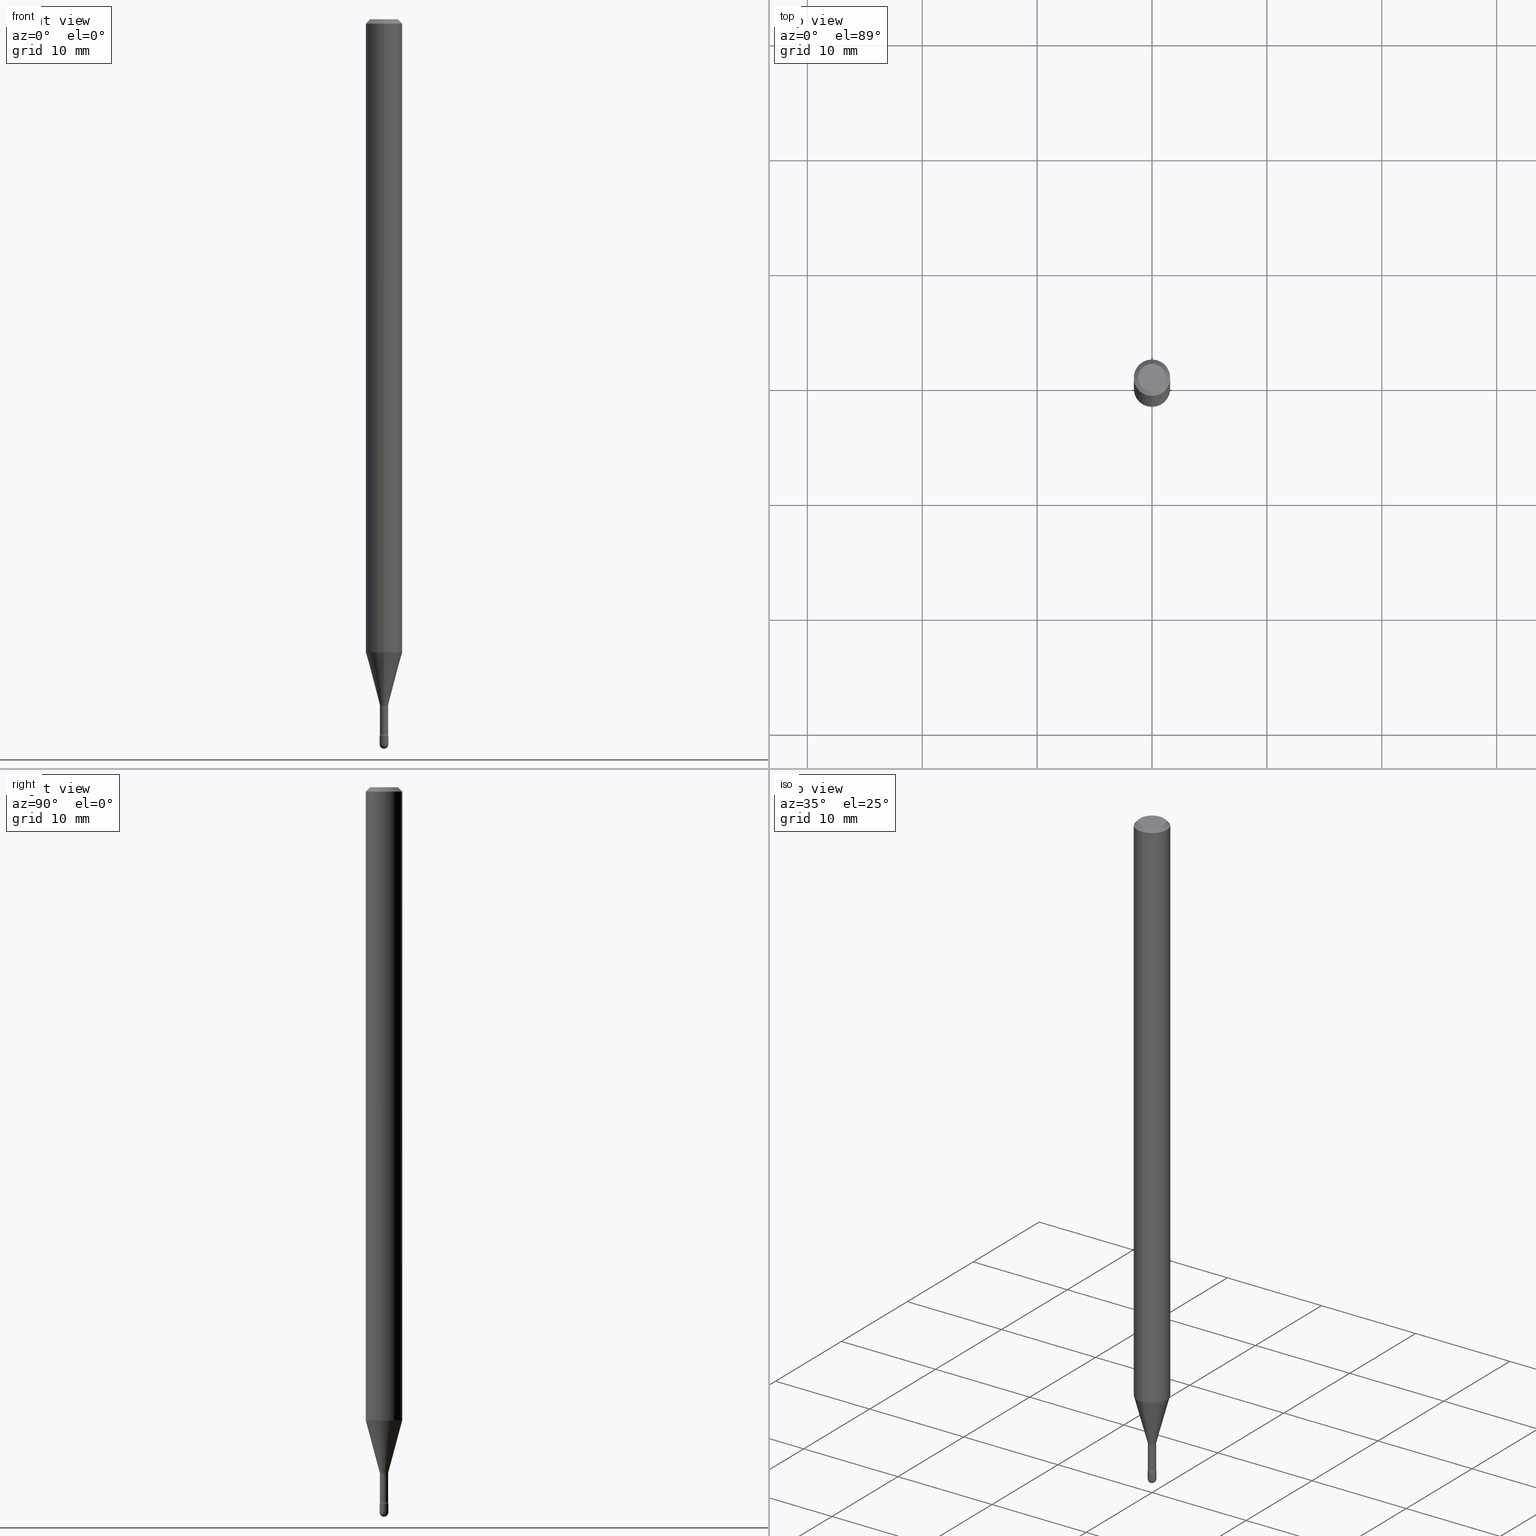
[diagram: canonical four-view strip — front | top / right | iso, engineering-drawing reading convention]
A machine part, canonical four-view strip (front | top / right | iso — engineering-drawing reading convention). The complete STEP part file that produces these views, byte-faithful:
ISO-10303-21;
HEADER;
FILE_DESCRIPTION (( 'STEP AP203' ),
    '1' );
FILE_NAME ('09439.STEP',
    '2024-04-09T23:10:27',
    ( '' ),
    ( '' ),
    'SwSTEP 2.0',
    'SolidWorks 2023',
    '' );
FILE_SCHEMA (( 'CONFIG_CONTROL_DESIGN' ));
ENDSEC;

DATA;
#1 = CARTESIAN_POINT ( 'NONE',  ( -1.047444401652339092E-16, -0.01500000000000856551, -2.455000000000000071 ) ) ;
#2 = DIRECTION ( 'NONE',  ( 1.000000000000000000, -6.982962677686204391E-15, 0.000000000000000000 ) ) ;
#3 = DIRECTION ( 'NONE',  ( -2.445515325509068465E-29, 3.491414720523559495E-15, 1.000000000000000000 ) ) ;
#4 = PLANE ( 'NONE',  #136 ) ;
#5 = APPROVAL_DATE_TIME ( #406, #88 ) ;
#6 = CARTESIAN_POINT ( 'NONE',  ( 6.076989983370064174E-29, -8.676331127025216680E-15, -2.484999999999999876 ) ) ;
#7 = CIRCLE ( 'NONE', #155, 0.01499999999999999424 ) ;
#8 = CC_DESIGN_APPROVAL ( #357, ( #46 ) ) ;
#9 = CARTESIAN_POINT ( 'NONE',  ( -0.01499999999999999771, 1.065814103640150116E-16, -7.378402635382356781E-31 ) ) ;
#10 = PERSON_AND_ORGANIZATION_ROLE ( 'classification_officer' ) ;
#11 = ORIENTED_EDGE ( 'NONE', *, *, #379, .F. ) ;
#12 = ADVANCED_FACE ( 'NONE', ( #365 ), #148, .T. ) ;
#13 = CARTESIAN_POINT ( 'NONE',  ( 2.739537045417235021E-16, 0.01461111260565578496, -2.348092501787273356 ) ) ;
#14 = DIRECTION ( 'NONE',  ( -6.982962677686265922E-15, -1.000000000000000000, 3.491414720523559101E-15 ) ) ;
#15 = PERSON ( 'UNSPECIFIED', 'UNSPECIFIED', 'UNSPECIFIED', ('UNSPECIFIED'), ('UNSPECIFIED'), ('UNSPECIFIED') ) ;
#16 = ORIENTED_EDGE ( 'NONE', *, *, #338, .T. ) ;
#17 = AXIS2_PLACEMENT_3D ( 'NONE', #20, #463, #497 ) ;
#18 = AXIS2_PLACEMENT_3D ( 'NONE', #86, #124, #80 ) ;
#19 = PERSON_AND_ORGANIZATION ( #15, #445 ) ;
#20 = CARTESIAN_POINT ( 'NONE',  ( 2.023891132384325688E-45, -2.888834055363846179E-31, -8.275019644172574323E-17 ) ) ;
#21 = ADVANCED_FACE ( 'NONE', ( #534 ), #561, .F. ) ;
#22 = DIRECTION ( 'NONE',  ( 6.982962677686265922E-15, 1.000000000000000000, -3.491414720523559101E-15 ) ) ;
#23 = DIRECTION ( 'NONE',  ( 1.000000000000000000, -6.982962677686204391E-15, 0.000000000000000000 ) ) ;
#24 = DIRECTION ( 'NONE',  ( -2.445515325509068465E-29, 3.491414720523559495E-15, 1.000000000000000000 ) ) ;
#25 = ORIENTED_EDGE ( 'NONE', *, *, #565, .F. ) ;
#26 = TOROIDAL_SURFACE ( 'NONE', #212, 0.02910000000000000087, 0.01500000000000002373 ) ;
#27 = FACE_OUTER_BOUND ( 'NONE', #264, .T. ) ;
#28 = LOCAL_TIME ( 19, 10, 27.00000000000000000, #139 ) ;
#29 = EDGE_CURVE ( 'NONE', #200, #226, #44, .T. ) ;
#30 = DIRECTION ( 'NONE',  ( -2.445515325509068465E-29, 3.491414720523559495E-15, 1.000000000000000000 ) ) ;
#31 = DIRECTION ( 'NONE',  ( -6.982962677686266711E-15, -1.000000000000000000, 3.491414720523561862E-15 ) ) ;
#32 = DIRECTION ( 'NONE',  ( 1.000000000000000000, -6.982962677686204391E-15, 0.000000000000000000 ) ) ;
#33 = VERTEX_POINT ( 'NONE', #382 ) ;
#34 = AXIS2_PLACEMENT_3D ( 'NONE', #412, #541, #160 ) ;
#35 = CC_DESIGN_PERSON_AND_ORGANIZATION_ASSIGNMENT ( #19, #10, ( #427 ) ) ;
#36 = VECTOR ( 'NONE', #184, 39.37007874015748143 ) ;
#37 = CARTESIAN_POINT ( 'NONE',  ( 1.047444401653551842E-16, 0.01499999999999138481, -2.484999999999999432 ) ) ;
#38 = ORIENTED_EDGE ( 'NONE', *, *, #517, .F. ) ;
#39 = EDGE_CURVE ( 'NONE', #242, #502, #249, .T. ) ;
#40 = CARTESIAN_POINT ( 'NONE',  ( 4.440892098501154699E-16, 0.06249999999999240885, -2.169368740913667271 ) ) ;
#41 = ORIENTED_EDGE ( 'NONE', *, *, #53, .T. ) ;
#42 = DIRECTION ( 'NONE',  ( -2.445468806185136597E-29, 3.491481338843145583E-15, 1.000000000000000000 ) ) ;
#43 = ORIENTED_EDGE ( 'NONE', *, *, #510, .T. ) ;
#44 = CIRCLE ( 'NONE', #17, 0.04749999999999999362 ) ;
#45 = VECTOR ( 'NONE', #85, 39.37007874015749564 ) ;
#46 = PRODUCT_DEFINITION_FORMATION_WITH_SPECIFIED_SOURCE ( 'ANY', '', #460, .NOT_KNOWN. ) ;
#47 = APPLICATION_CONTEXT ( 'configuration controlled 3d designs of mechanical parts and assemblies' ) ;
#48 = CARTESIAN_POINT ( 'NONE',  ( 2.067679361062493109E-16, 0.02909999999999148684, -2.449882383367230965 ) ) ;
#49 = CARTESIAN_POINT ( 'NONE',  ( 0.01499999999999999771, -1.047444401652939859E-16, 7.314265163693902638E-31 ) ) ;
#50 = ORIENTED_EDGE ( 'NONE', *, *, #565, .T. ) ;
#51 = PLANE ( 'NONE',  #279 ) ;
#52 =( NAMED_UNIT ( * ) SI_UNIT ( $, .STERADIAN. ) SOLID_ANGLE_UNIT ( ) );
#53 = EDGE_CURVE ( 'NONE', #502, #398, #386, .T. ) ;
#54 = ADVANCED_FACE ( 'NONE', ( #199 ), #26, .F. ) ;
#55 = AXIS2_PLACEMENT_3D ( 'NONE', #76, #240, #327 ) ;
#56 = APPROVAL_PERSON_ORGANIZATION ( #141, #499, #272 ) ;
#57 = DIRECTION ( 'NONE',  ( -6.982962677686265922E-15, -1.000000000000000000, 0.000000000000000000 ) ) ;
#58 = CARTESIAN_POINT ( 'NONE',  ( 6.003740124124763858E-29, -8.571423138885338931E-15, -2.455000000000000071 ) ) ;
#59 = LINE ( 'NONE', #400, #164 ) ;
#60 = ORIENTED_EDGE ( 'NONE', *, *, #439, .T. ) ;
#61 = DIRECTION ( 'NONE',  ( 1.000000000000000000, -6.982962677686266711E-15, 4.876176775795935793E-29 ) ) ;
#62 = PRODUCT_RELATED_PRODUCT_CATEGORY ( 'detail', '', ( #460 ) ) ;
#63 = PERSON_AND_ORGANIZATION ( #15, #445 ) ;
#64 = DIRECTION ( 'NONE',  ( 1.000000000000000000, -6.982962677686204391E-15, 0.000000000000000000 ) ) ;
#65 = CIRCLE ( 'NONE', #456, 0.01500000000000012434 ) ;
#66 = CC_DESIGN_APPROVAL ( #88, ( #192 ) ) ;
#67 = FACE_OUTER_BOUND ( 'NONE', #255, .T. ) ;
#68 = DIRECTION ( 'NONE',  ( -2.445468806185136597E-29, 3.491481338843145583E-15, 1.000000000000000000 ) ) ;
#69 = DIRECTION ( 'NONE',  ( -6.982962677686265922E-15, -1.000000000000000000, 3.483106191921935554E-15 ) ) ;
#70 = EDGE_LOOP ( 'NONE', ( #161, #176 ) ) ;
#71 = ADVANCED_BREP_SHAPE_REPRESENTATION ( '09439', ( #301, #105, #543 ), #183 ) ;
#72 = CARTESIAN_POINT ( 'NONE',  ( 5.751680975676666487E-29, -8.211876079859469508E-15, -2.351974787463811278 ) ) ;
#73 = ORIENTED_EDGE ( 'NONE', *, *, #397, .F. ) ;
#74 = ADVANCED_FACE ( 'NONE', ( #285 ), #426, .F. ) ;
#75 = AXIS2_PLACEMENT_3D ( 'NONE', #549, #213, #122 ) ;
#76 = CARTESIAN_POINT ( 'NONE',  ( 5.742296198833706335E-29, -8.198164725891078954E-15, -2.348092501787273356 ) ) ;
#77 = AXIS2_PLACEMENT_3D ( 'NONE', #271, #224, #227 ) ;
#78 = DIRECTION ( 'NONE',  ( 1.000000000000000000, -6.982962677686268288E-15, 0.000000000000000000 ) ) ;
#79 = ORIENTED_EDGE ( 'NONE', *, *, #222, .F. ) ;
#80 = DIRECTION ( 'NONE',  ( -6.982962677686265922E-15, -1.000000000000000000, 4.370956789862821150E-15 ) ) ;
#81 = VERTEX_POINT ( 'NONE', #196 ) ;
#82 = CARTESIAN_POINT ( 'NONE',  ( -1.169113584055446105E-44, 1.669184350826100908E-30, 4.780733988912460139E-16 ) ) ;
#83 = ORIENTED_EDGE ( 'NONE', *, *, #254, .T. ) ;
#84 = AXIS2_PLACEMENT_3D ( 'NONE', #250, #30, #69 ) ;
#85 = DIRECTION ( 'NONE',  ( -1.807323732225328562E-15, -0.2588190451025179639, 0.9659258262890689783 ) ) ;
#86 = CARTESIAN_POINT ( 'NONE',  ( 5.305224502584683767E-29, -7.574165956269636631E-15, -2.169368740913666826 ) ) ;
#87 = EDGE_LOOP ( 'NONE', ( #296, #38, #350, #511 ) ) ;
#88 = APPROVAL ( #402, 'UNSPECIFIED' ) ;
#89 = DIRECTION ( 'NONE',  ( -1.000000000000000000, 6.982962677686265922E-15, -4.883557194083112340E-29 ) ) ;
#90 = EDGE_LOOP ( 'NONE', ( #205, #43, #79, #244, #266 ) ) ;
#91 = APPROVAL_PERSON_ORGANIZATION ( #147, #88, #326 ) ;
#92 = CARTESIAN_POINT ( 'NONE',  ( 0.01499999999999999944, -8.676331127025216680E-15, -2.455000000000000071 ) ) ;
#93 = DATE_AND_TIME ( #409, #28 ) ;
#94 = ORIENTED_EDGE ( 'NONE', *, *, #180, .T. ) ;
#95 = DIRECTION ( 'NONE',  ( -6.982962677686265133E-15, -1.000000000000000000, 0.000000000000000000 ) ) ;
#96 = CALENDAR_DATE ( 2024, 9, 4 ) ;
#97 = CC_DESIGN_PERSON_AND_ORGANIZATION_ASSIGNMENT ( #524, #492, ( #192 ) ) ;
#98 = DIRECTION ( 'NONE',  ( -2.445515325509068745E-29, 3.491414720523559101E-15, 1.000000000000000000 ) ) ;
#99 = PERSON_AND_ORGANIZATION ( #15, #445 ) ;
#100 = AXIS2_PLACEMENT_3D ( 'NONE', #444, #268, #231 ) ;
#101 = CARTESIAN_POINT ( 'NONE',  ( 0.000000000000000000, 0.000000000000000000, 0.000000000000000000 ) ) ;
#102 = DIRECTION ( 'NONE',  ( 7.105427357600997914E-15, 1.000000000000000000, 0.000000000000000000 ) ) ;
#103 = COORDINATED_UNIVERSAL_TIME_OFFSET ( 5, 0, .BEHIND. ) ;
#104 = ORIENTED_EDGE ( 'NONE', *, *, #470, .F. ) ;
#105 = MANIFOLD_SOLID_BREP ( 'Body-Move/Copy2[2]', #292 ) ;
#106 = PERSON_AND_ORGANIZATION_ROLE ( 'creator' ) ;
#107 = ORIENTED_EDGE ( 'NONE', *, *, #483, .F. ) ;
#108 = DIRECTION ( 'NONE',  ( -6.982962677686265922E-15, -1.000000000000000000, 0.000000000000000000 ) ) ;
#109 = ORIENTED_EDGE ( 'NONE', *, *, #234, .F. ) ;
#110 = VECTOR ( 'NONE', #169, 39.37007874015748143 ) ;
#111 = DIRECTION ( 'NONE',  ( -2.445515325509068465E-29, 3.491414720523559495E-15, 1.000000000000000000 ) ) ;
#112 = ORIENTED_EDGE ( 'NONE', *, *, #207, .F. ) ;
#113 = DIRECTION ( 'NONE',  ( 6.982962677686265922E-15, 1.000000000000000000, -3.483106191921935554E-15 ) ) ;
#114 = ADVANCED_FACE ( 'NONE', ( #67 ), #378, .T. ) ;
#115 = ORIENTED_EDGE ( 'NONE', *, *, #300, .T. ) ;
#116 = APPLICATION_CONTEXT ( 'configuration controlled 3d designs of mechanical parts and assemblies' ) ;
#117 = VERTEX_POINT ( 'NONE', #246 ) ;
#118 = CIRCLE ( 'NONE', #500, 0.01410000000000000316 ) ;
#119 = CARTESIAN_POINT ( 'NONE',  ( -0.01500000000000000291, -8.517377496578554084E-15, -2.455000000000000071 ) ) ;
#120 = ORIENTED_EDGE ( 'NONE', *, *, #158, .T. ) ;
#121 = ADVANCED_FACE ( 'NONE', ( #27 ), #229, .T. ) ;
#122 = DIRECTION ( 'NONE',  ( 6.982962677686265922E-15, 1.000000000000000000, 0.000000000000000000 ) ) ;
#123 =( LENGTH_UNIT ( ) NAMED_UNIT ( * ) SI_UNIT ( $, .METRE. ) );
#124 = DIRECTION ( 'NONE',  ( -2.445515325509068465E-29, 3.491414720523559495E-15, 1.000000000000000000 ) ) ;
#125 = ORIENTED_EDGE ( 'NONE', *, *, #320, .F. ) ;
#126 = CARTESIAN_POINT ( 'NONE',  ( -1.020288540047655014E-16, -0.01461111260567218156, -2.348092501787273356 ) ) ;
#127 = CIRCLE ( 'NONE', #405, 0.01499999999999999771 ) ;
#128 = AXIS2_PLACEMENT_3D ( 'NONE', #503, #539, #113 ) ;
#129 = DIRECTION ( 'NONE',  ( -2.445515325509068465E-29, 3.491414720523559495E-15, 1.000000000000000000 ) ) ;
#130 = ADVANCED_FACE ( 'NONE', ( #536 ), #530, .T. ) ;
#131 = CARTESIAN_POINT ( 'NONE',  ( 1.001865257421742965E-16, 0.01410000000000002571, 4.288444513318637644E-16 ) ) ;
#132 = ORIENTED_EDGE ( 'NONE', *, *, #172, .F. ) ;
#133 = DIRECTION ( 'NONE',  ( -6.982962677686266711E-15, -1.000000000000000000, 3.491414720523561862E-15 ) ) ;
#134 = DATE_TIME_ROLE ( 'classification_date' ) ;
#135 = AXIS2_PLACEMENT_3D ( 'NONE', #391, #557, #349 ) ;
#136 = AXIS2_PLACEMENT_3D ( 'NONE', #138, #321, #491 ) ;
#137 = CC_DESIGN_DATE_AND_TIME_ASSIGNMENT ( #282, #448, ( #192 ) ) ;
#138 = CARTESIAN_POINT ( 'NONE',  ( 6.003625919184510659E-29, -8.571586686859923311E-15, -2.455000000000000071 ) ) ;
#139 = COORDINATED_UNIVERSAL_TIME_OFFSET ( 5, 0, .BEHIND. ) ;
#140 = CYLINDRICAL_SURFACE ( 'NONE', #552, 0.06250000000000000000 ) ;
#141 = PERSON_AND_ORGANIZATION ( #15, #445 ) ;
#142 = DIRECTION ( 'NONE',  ( -6.982962677686265922E-15, -1.000000000000000000, 0.000000000000000000 ) ) ;
#143 = DIRECTION ( 'NONE',  ( 1.000000000000000000, 0.000000000000000000, 0.000000000000000000 ) ) ;
#144 = EDGE_LOOP ( 'NONE', ( #210, #418 ) ) ;
#145 = AXIS2_PLACEMENT_3D ( 'NONE', #504, #454, #64 ) ;
#146 = AXIS2_PLACEMENT_3D ( 'NONE', #334, #245, #61 ) ;
#147 = PERSON_AND_ORGANIZATION ( #15, #445 ) ;
#148 = SPHERICAL_SURFACE ( 'NONE', #248, 0.01500000000000012434 ) ;
#149 = ADVANCED_FACE ( 'NONE', ( #337 ), #415, .F. ) ;
#150 = ADVANCED_FACE ( 'NONE', ( #330 ), #368, .F. ) ;
#151 = CARTESIAN_POINT ( 'NONE',  ( 6.076989983370063053E-29, -8.676331127025215102E-15, -2.484999999999999432 ) ) ;
#152 = DIRECTION ( 'NONE',  ( -2.445515325509068465E-29, 3.491414720523559495E-15, 1.000000000000000000 ) ) ;
#153 = CARTESIAN_POINT ( 'NONE',  ( 3.316907271900976096E-16, 0.04749999999999999362, 3.181940199989112269E-17 ) ) ;
#154 = ORIENTED_EDGE ( 'NONE', *, *, #450, .F. ) ;
#155 = AXIS2_PLACEMENT_3D ( 'NONE', #518, #89, #480 ) ;
#156 = DIRECTION ( 'NONE',  ( -2.445468806185136597E-29, 3.491481338843145583E-15, 1.000000000000000000 ) ) ;
#157 = DIRECTION ( 'NONE',  ( -6.982962677686265922E-15, -1.000000000000000000, 0.000000000000000000 ) ) ;
#158 = EDGE_CURVE ( 'NONE', #360, #33, #332, .T. ) ;
#159 = LOCAL_TIME ( 19, 10, 27.00000000000000000, #487 ) ;
#160 = DIRECTION ( 'NONE',  ( 7.105427357600999492E-15, 1.000000000000000000, 0.000000000000000000 ) ) ;
#161 = ORIENTED_EDGE ( 'NONE', *, *, #358, .F. ) ;
#162 = DIRECTION ( 'NONE',  ( -6.982962677686265922E-15, -1.000000000000000000, 3.491414720523559495E-15 ) ) ;
#163 = VERTEX_POINT ( 'NONE', #340 ) ;
#164 = VECTOR ( 'NONE', #98, 39.37007874015748143 ) ;
#165 = DIRECTION ( 'NONE',  ( -2.445515325509068465E-29, 3.491414720523559495E-15, 1.000000000000000000 ) ) ;
#166 = ORIENTED_EDGE ( 'NONE', *, *, #399, .T. ) ;
#167 = CARTESIAN_POINT ( 'NONE',  ( 5.751790387953684736E-29, -8.211719395251420381E-15, -2.351974787463811278 ) ) ;
#168 = ORIENTED_EDGE ( 'NONE', *, *, #300, .F. ) ;
#169 = DIRECTION ( 'NONE',  ( -4.851104656540964275E-15, -0.7071067811865500152, -0.7071067811865450192 ) ) ;
#170 = EDGE_LOOP ( 'NONE', ( #260, #560, #381, #323 ) ) ;
#171 = DIRECTION ( 'NONE',  ( -1.000000000000000000, 7.105427357601001070E-15, -4.926315508542082329E-29 ) ) ;
#172 = EDGE_CURVE ( 'NONE', #298, #371, #269, .T. ) ;
#173 = AXIS2_PLACEMENT_3D ( 'NONE', #48, #235, #102 ) ;
#174 = EDGE_LOOP ( 'NONE', ( #537, #383, #354, #429 ) ) ;
#175 = LINE ( 'NONE', #215, #45 ) ;
#176 = ORIENTED_EDGE ( 'NONE', *, *, #439, .F. ) ;
#177 = DIRECTION ( 'NONE',  ( -2.445515325509068465E-29, 3.491414720523559495E-15, 1.000000000000000000 ) ) ;
#178 = CARTESIAN_POINT ( 'NONE',  ( 6.114313390179726173E-29, -8.727784862008503672E-15, -2.500000000000000000 ) ) ;
#179 = ORIENTED_EDGE ( 'NONE', *, *, #529, .F. ) ;
#180 = EDGE_CURVE ( 'NONE', #389, #307, #377, .T. ) ;
#181 = FACE_OUTER_BOUND ( 'NONE', #328, .T. ) ;
#182 = PERSON_AND_ORGANIZATION_ROLE ( 'design_owner' ) ;
#183 =( GEOMETRIC_REPRESENTATION_CONTEXT ( 3 ) GLOBAL_UNCERTAINTY_ASSIGNED_CONTEXT ( ( #555 ) ) GLOBAL_UNIT_ASSIGNED_CONTEXT ( ( #191, #453, #52 ) ) REPRESENTATION_CONTEXT ( 'NONE', 'WORKASPACE' ) );
#184 = DIRECTION ( 'NONE',  ( -2.445468806185136877E-29, 3.491481338843145188E-15, 1.000000000000000000 ) ) ;
#185 = DATE_AND_TIME ( #519, #239 ) ;
#186 = VERTEX_POINT ( 'NONE', #37 ) ;
#187 = CARTESIAN_POINT ( 'NONE',  ( 4.440892098500625669E-16, 0.06250000000000000000, 2.598599788585235948E-16 ) ) ;
#188 = LINE ( 'NONE', #9, #36 ) ;
#189 = CARTESIAN_POINT ( 'NONE',  ( 0.000000000000000000, 0.000000000000000000, 0.000000000000000000 ) ) ;
#190 = DIRECTION ( 'NONE',  ( -2.445468806185136877E-29, 3.491481338843145188E-15, 1.000000000000000000 ) ) ;
#191 =( CONVERSION_BASED_UNIT ( 'INCH', #263 ) LENGTH_UNIT ( ) NAMED_UNIT ( #558 ) );
#192 = PRODUCT_DEFINITION ( 'UNKNOWN', '', #46, #473 ) ;
#193 = CIRCLE ( 'NONE', #18, 0.06250000000000000000 ) ;
#194 = AXIS2_PLACEMENT_3D ( 'NONE', #488, #486, #95 ) ;
#195 = COORDINATED_UNIVERSAL_TIME_OFFSET ( 5, 0, .BEHIND. ) ;
#196 = CARTESIAN_POINT ( 'NONE',  ( 1.033839680531546815E-16, 0.01409999999999149607, -2.449882383367230965 ) ) ;
#197 = VERTEX_POINT ( 'NONE', #393 ) ;
#198 = ADVANCED_FACE ( 'NONE', ( #430 ), #512, .T. ) ;
#199 = FACE_OUTER_BOUND ( 'NONE', #481, .T. ) ;
#200 = VERTEX_POINT ( 'NONE', #467 ) ;
#201 = AXIS2_PLACEMENT_3D ( 'NONE', #256, #469, #514 ) ;
#202 = LINE ( 'NONE', #544, #532 ) ;
#203 = AXIS2_PLACEMENT_3D ( 'NONE', #58, #408, #437 ) ;
#204 = DIRECTION ( 'NONE',  ( -6.982962677686265922E-15, -1.000000000000000000, 0.000000000000000000 ) ) ;
#205 = ORIENTED_EDGE ( 'NONE', *, *, #556, .T. ) ;
#206 = DIRECTION ( 'NONE',  ( -6.982962677686265922E-15, -1.000000000000000000, 4.370956789862821150E-15 ) ) ;
#207 = EDGE_CURVE ( 'NONE', #226, #360, #258, .T. ) ;
#208 = ORIENTED_EDGE ( 'NONE', *, *, #390, .F. ) ;
#209 = CARTESIAN_POINT ( 'NONE',  ( -1.065814103639546884E-16, -0.01500000000000873551, -2.484999999999999432 ) ) ;
#210 = ORIENTED_EDGE ( 'NONE', *, *, #29, .T. ) ;
#211 = ADVANCED_FACE ( 'NONE', ( #471 ), #421, .T. ) ;
#212 = AXIS2_PLACEMENT_3D ( 'NONE', #72, #152, #376 ) ;
#213 = DIRECTION ( 'NONE',  ( -1.000000000000000000, 6.982962677686265922E-15, -4.883557194083113462E-29 ) ) ;
#214 = CIRCLE ( 'NONE', #194, 0.01410000000000000316 ) ;
#215 = CARTESIAN_POINT ( 'NONE',  ( -1.020288540047655014E-16, -0.01461111260567218156, -2.348092501787273356 ) ) ;
#216 = CARTESIAN_POINT ( 'NONE',  ( -1.169113584055446105E-44, 1.669184350826100908E-30, 4.780733988912460139E-16 ) ) ;
#217 = ORIENTED_EDGE ( 'NONE', *, *, #397, .T. ) ;
#218 = DIRECTION ( 'NONE',  ( -2.445515325509068465E-29, 3.491414720523559495E-15, 1.000000000000000000 ) ) ;
#219 = AXIS2_PLACEMENT_3D ( 'NONE', #153, #380, #22 ) ;
#220 = CIRCLE ( 'NONE', #563, 0.01410000000000004999 ) ;
#221 = CARTESIAN_POINT ( 'NONE',  ( -1.169113584055446105E-44, 1.669184350826100908E-30, 4.780733988912460139E-16 ) ) ;
#222 = EDGE_CURVE ( 'NONE', #392, #367, #324, .T. ) ;
#223 = ORIENTED_EDGE ( 'NONE', *, *, #470, .T. ) ;
#224 = DIRECTION ( 'NONE',  ( 1.000000000000000000, -6.982962677686265922E-15, 4.883557194083112340E-29 ) ) ;
#225 = DIRECTION ( 'NONE',  ( 0.000000000000000000, 0.000000000000000000, 1.000000000000000000 ) ) ;
#226 = VERTEX_POINT ( 'NONE', #476 ) ;
#227 = DIRECTION ( 'NONE',  ( 6.982962677686265922E-15, 1.000000000000000000, 0.000000000000000000 ) ) ;
#228 = APPLICATION_PROTOCOL_DEFINITION ( 'international standard', 'config_control_design', 1994, #47 ) ;
#229 = CONICAL_SURFACE ( 'NONE', #302, 0.01461111260566398326, 0.2617993877991501295 ) ;
#230 = LINE ( 'NONE', #187, #287 ) ;
#231 = DIRECTION ( 'NONE',  ( -6.982962677686265133E-15, -1.000000000000000000, 0.000000000000000000 ) ) ;
#232 = APPROVAL_ROLE ( '' ) ;
#233 = EDGE_LOOP ( 'NONE', ( #423, #356, #554, #107 ) ) ;
#234 = EDGE_CURVE ( 'NONE', #117, #186, #127, .T. ) ;
#235 = DIRECTION ( 'NONE',  ( 1.000000000000000000, -7.105427357601001070E-15, 4.926314692702963478E-29 ) ) ;
#236 = ORIENTED_EDGE ( 'NONE', *, *, #39, .F. ) ;
#237 = PERSON_AND_ORGANIZATION_ROLE ( 'design_supplier' ) ;
#238 = CARTESIAN_POINT ( 'NONE',  ( 5.742296198833706335E-29, -8.198164725891078954E-15, -2.348092501787273356 ) ) ;
#239 = LOCAL_TIME ( 19, 10, 27.00000000000000000, #195 ) ;
#240 = DIRECTION ( 'NONE',  ( -2.445515325509068465E-29, 3.491414720523559495E-15, 1.000000000000000000 ) ) ;
#241 = ADVANCED_FACE ( 'NONE', ( #509 ), #506, .T. ) ;
#242 = VERTEX_POINT ( 'NONE', #126 ) ;
#243 = CARTESIAN_POINT ( 'NONE',  ( 5.991110947347058823E-29, -8.553718623887255619E-15, -2.449882383367230965 ) ) ;
#244 = ORIENTED_EDGE ( 'NONE', *, *, #452, .F. ) ;
#245 = DIRECTION ( 'NONE',  ( -2.445468806185136597E-29, 3.491481338843145583E-15, 1.000000000000000000 ) ) ;
#246 = CARTESIAN_POINT ( 'NONE',  ( 0.01499999999999999771, -8.728703347107861787E-15, -2.484999999999999432 ) ) ;
#247 = ORIENTED_EDGE ( 'NONE', *, *, #207, .T. ) ;
#248 = AXIS2_PLACEMENT_3D ( 'NONE', #6, #363, #276 ) ;
#249 = CIRCLE ( 'NONE', #562, 0.01461111260566398326 ) ;
#250 = CARTESIAN_POINT ( 'NONE',  ( 3.668272988263622946E-31, -5.237122080785368381E-17, -0.01500000000000008271 ) ) ;
#251 = EDGE_LOOP ( 'NONE', ( #345, #305, #464, #425 ) ) ;
#252 = CC_DESIGN_PERSON_AND_ORGANIZATION_ASSIGNMENT ( #495, #106, ( #46 ) ) ;
#253 = FACE_OUTER_BOUND ( 'NONE', #233, .T. ) ;
#254 = EDGE_CURVE ( 'NONE', #242, #371, #175, .T. ) ;
#255 = EDGE_LOOP ( 'NONE', ( #112, #257, #449, #310 ) ) ;
#256 = CARTESIAN_POINT ( 'NONE',  ( 2.023891132384325688E-45, -2.888834055363846179E-31, -8.275019644172574323E-17 ) ) ;
#257 = ORIENTED_EDGE ( 'NONE', *, *, #29, .F. ) ;
#258 = LINE ( 'NONE', #344, #110 ) ;
#259 = LOCAL_TIME ( 19, 10, 27.00000000000000000, #103 ) ;
#260 = ORIENTED_EDGE ( 'NONE', *, *, #517, .T. ) ;
#261 = CC_DESIGN_PERSON_AND_ORGANIZATION_ASSIGNMENT ( #99, #182, ( #460 ) ) ;
#262 = DIRECTION ( 'NONE',  ( -2.445515325509068745E-29, 3.491414720523559101E-15, 1.000000000000000000 ) ) ;
#263 = LENGTH_MEASURE_WITH_UNIT ( LENGTH_MEASURE( 0.02539999999999999897 ), #123 );
#264 = EDGE_LOOP ( 'NONE', ( #540, #341, #83, #132 ) ) ;
#265 = CARTESIAN_POINT ( 'NONE',  ( 6.076989983370063053E-29, -8.676331127025215102E-15, -2.484999999999999432 ) ) ;
#266 = ORIENTED_EDGE ( 'NONE', *, *, #234, .T. ) ;
#267 = CLOSED_SHELL ( 'NONE', ( #521, #12, #477, #241, #548 ) ) ;
#268 = DIRECTION ( 'NONE',  ( -1.000000000000000000, 6.982962677686265922E-15, -4.883557194083112340E-29 ) ) ;
#269 = CIRCLE ( 'NONE', #433, 0.06250000000000000000 ) ;
#270 = CIRCLE ( 'NONE', #395, 0.06250000000000000000 ) ;
#271 = CARTESIAN_POINT ( 'NONE',  ( 6.076989983370064174E-29, -8.676331127025216680E-15, -2.484999999999999876 ) ) ;
#272 = APPROVAL_ROLE ( '' ) ;
#273 = ORIENTED_EDGE ( 'NONE', *, *, #538, .F. ) ;
#274 = CARTESIAN_POINT ( 'NONE',  ( 3.668272988263622946E-31, -5.237122080785368381E-17, -0.01500000000000008271 ) ) ;
#275 = APPROVAL_DATE_TIME ( #489, #499 ) ;
#276 = DIRECTION ( 'NONE',  ( 6.982962677686265922E-15, 1.000000000000000000, 0.000000000000000000 ) ) ;
#277 = FACE_OUTER_BOUND ( 'NONE', #70, .T. ) ;
#278 = SHAPE_DEFINITION_REPRESENTATION ( #498, #71 ) ;
#279 = AXIS2_PLACEMENT_3D ( 'NONE', #309, #410, #14 ) ;
#280 = ADVANCED_FACE ( 'NONE', ( #253 ), #297, .T. ) ;
#281 = CARTESIAN_POINT ( 'NONE',  ( 5.991224914219246236E-29, -8.553555416839693182E-15, -2.449882383367230965 ) ) ;
#282 = DATE_AND_TIME ( #438, #343 ) ;
#283 = ORIENTED_EDGE ( 'NONE', *, *, #452, .T. ) ;
#284 = CALENDAR_DATE ( 2024, 9, 4 ) ;
#285 = FACE_OUTER_BOUND ( 'NONE', #331, .T. ) ;
#286 = VECTOR ( 'NONE', #262, 39.37007874015748143 ) ;
#287 = VECTOR ( 'NONE', #372, 39.37007874015748143 ) ;
#288 = CARTESIAN_POINT ( 'NONE',  ( 5.991110947347058823E-29, -8.553718623887255619E-15, -2.449882383367230965 ) ) ;
#289 = CARTESIAN_POINT ( 'NONE',  ( 5.742296198833706335E-29, -8.198164725891078954E-15, -2.348092501787273356 ) ) ;
#290 = DIRECTION ( 'NONE',  ( -6.982962677686265922E-15, -1.000000000000000000, 3.491414720523559495E-15 ) ) ;
#291 = EDGE_LOOP ( 'NONE', ( #125, #247, #120, #468 ) ) ;
#292 = CLOSED_SHELL ( 'NONE', ( #54, #431, #21, #198, #211, #130, #121, #419, #114, #149, #385, #150, #280, #74 ) ) ;
#293 = EDGE_CURVE ( 'NONE', #371, #360, #564, .T. ) ;
#294 = AXIS2_PLACEMENT_3D ( 'NONE', #281, #312, #142 ) ;
#295 = CARTESIAN_POINT ( 'NONE',  ( -4.364351673553385199E-16, -0.06250000000000757727, -2.169368740913666826 ) ) ;
#296 = ORIENTED_EDGE ( 'NONE', *, *, #399, .F. ) ;
#297 = CYLINDRICAL_SURFACE ( 'NONE', #313, 0.01410000000000002571 ) ;
#298 = VERTEX_POINT ( 'NONE', #40 ) ;
#299 = CARTESIAN_POINT ( 'NONE',  ( 6.003625919184510659E-29, -8.571586686859923311E-15, -2.455000000000000071 ) ) ;
#300 = EDGE_CURVE ( 'NONE', #566, #307, #65, .T. ) ;
#301 = MANIFOLD_SOLID_BREP ( 'Body-Move/Copy2[1]', #267 ) ;
#302 = AXIS2_PLACEMENT_3D ( 'NONE', #238, #370, #204 ) ;
#303 = DIRECTION ( 'NONE',  ( -2.445515325509068465E-29, 3.491414720523559495E-15, 1.000000000000000000 ) ) ;
#304 = CC_DESIGN_SECURITY_CLASSIFICATION ( #427, ( #46 ) ) ;
#305 = ORIENTED_EDGE ( 'NONE', *, *, #538, .T. ) ;
#306 = DIRECTION ( 'NONE',  ( -6.982962677686265922E-15, -1.000000000000000000, 3.491414720523560678E-15 ) ) ;
#307 = VERTEX_POINT ( 'NONE', #209 ) ;
#308 = CC_DESIGN_PERSON_AND_ORGANIZATION_ASSIGNMENT ( #63, #237, ( #46 ) ) ;
#309 = CARTESIAN_POINT ( 'NONE',  ( 1.047444401653540256E-16, 0.01499999999999142818, -2.455000000000000071 ) ) ;
#310 = ORIENTED_EDGE ( 'NONE', *, *, #494, .T. ) ;
#311 = EDGE_CURVE ( 'NONE', #502, #298, #432, .T. ) ;
#312 = DIRECTION ( 'NONE',  ( -2.445515325509068465E-29, 3.491414720523559495E-15, 1.000000000000000000 ) ) ;
#313 = AXIS2_PLACEMENT_3D ( 'NONE', #82, #218, #31 ) ;
#314 = APPROVAL_STATUS ( 'not_yet_approved' ) ;
#315 = AXIS2_PLACEMENT_3D ( 'NONE', #375, #156, #2 ) ;
#316 = DIRECTION ( 'NONE',  ( 1.000000000000000000, -6.982962677686268288E-15, 0.000000000000000000 ) ) ;
#317 = APPROVAL_DATE_TIME ( #93, #357 ) ;
#318 = CARTESIAN_POINT ( 'NONE',  ( -1.169113584055446105E-44, 1.669184350826100908E-30, 4.780733988912460139E-16 ) ) ;
#319 = PERSON_AND_ORGANIZATION ( #15, #445 ) ;
#320 = EDGE_CURVE ( 'NONE', #226, #200, #394, .T. ) ;
#321 = DIRECTION ( 'NONE',  ( -2.438088387897960049E-29, 3.491481338843145188E-15, 1.000000000000000000 ) ) ;
#322 = AXIS2_PLACEMENT_3D ( 'NONE', #243, #455, #459 ) ;
#323 = ORIENTED_EDGE ( 'NONE', *, *, #422, .F. ) ;
#324 = CIRCLE ( 'NONE', #551, 0.01499999999999999944 ) ;
#325 = AXIS2_PLACEMENT_3D ( 'NONE', #318, #361, #133 ) ;
#326 = APPROVAL_ROLE ( '' ) ;
#327 = DIRECTION ( 'NONE',  ( -6.982962677686265922E-15, -1.000000000000000000, 0.000000000000000000 ) ) ;
#328 = EDGE_LOOP ( 'NONE', ( #273, #479, #472, #348 ) ) ;
#329 = CYLINDRICAL_SURFACE ( 'NONE', #146, 0.01499999999999999771 ) ;
#330 = FACE_OUTER_BOUND ( 'NONE', #87, .T. ) ;
#331 = EDGE_LOOP ( 'NONE', ( #461, #236, #217, #16 ) ) ;
#332 = CIRCLE ( 'NONE', #84, 0.06250000000000000000 ) ;
#333 = AXIS2_PLACEMENT_3D ( 'NONE', #101, #68, #446 ) ;
#334 = CARTESIAN_POINT ( 'NONE',  ( 0.000000000000000000, 0.000000000000000000, 0.000000000000000000 ) ) ;
#335 = DIRECTION ( 'NONE',  ( -2.445515325509068465E-29, 3.491414720523559495E-15, 1.000000000000000000 ) ) ;
#336 = ORIENTED_EDGE ( 'NONE', *, *, #483, .T. ) ;
#337 = FACE_OUTER_BOUND ( 'NONE', #144, .T. ) ;
#338 = EDGE_CURVE ( 'NONE', #339, #398, #118, .T. ) ;
#339 = VERTEX_POINT ( 'NONE', #384 ) ;
#340 = CARTESIAN_POINT ( 'NONE',  ( -9.845977375531677983E-17, -0.01410000000000860391, -2.449882383367230965 ) ) ;
#341 = ORIENTED_EDGE ( 'NONE', *, *, #529, .T. ) ;
#342 = AXIS2_PLACEMENT_3D ( 'NONE', #515, #364, #316 ) ;
#343 = LOCAL_TIME ( 19, 10, 27.00000000000000000, #485 ) ;
#344 = CARTESIAN_POINT ( 'NONE',  ( -4.287811248607203282E-16, -0.06250000000000005551, -0.01499999999999986587 ) ) ;
#345 = ORIENTED_EDGE ( 'NONE', *, *, #346, .T. ) ;
#346 = EDGE_CURVE ( 'NONE', #371, #298, #193, .T. ) ;
#347 = CARTESIAN_POINT ( 'NONE',  ( 6.076989983370064174E-29, -8.676331127025216680E-15, -2.484999999999999876 ) ) ;
#348 = ORIENTED_EDGE ( 'NONE', *, *, #494, .F. ) ;
#349 = DIRECTION ( 'NONE',  ( 6.982962677686265922E-15, 1.000000000000000000, -3.483106191921935554E-15 ) ) ;
#350 = ORIENTED_EDGE ( 'NONE', *, *, #390, .T. ) ;
#351 = CIRCLE ( 'NONE', #100, 0.01500000000000002373 ) ;
#352 = CIRCLE ( 'NONE', #315, 0.01499999999999999771 ) ;
#353 = DIRECTION ( 'NONE',  ( -7.105427357601000281E-15, -1.000000000000000000, 0.000000000000000000 ) ) ;
#354 = ORIENTED_EDGE ( 'NONE', *, *, #346, .F. ) ;
#355 = CARTESIAN_POINT ( 'NONE',  ( -4.364351673553912750E-16, -0.06250000000000005551, -0.01499999999999986587 ) ) ;
#356 = ORIENTED_EDGE ( 'NONE', *, *, #450, .T. ) ;
#357 = APPROVAL ( #526, 'UNSPECIFIED' ) ;
#358 = EDGE_CURVE ( 'NONE', #441, #197, #482, .T. ) ;
#359 = CYLINDRICAL_SURFACE ( 'NONE', #325, 0.01410000000000002571 ) ;
#360 = VERTEX_POINT ( 'NONE', #355 ) ;
#361 = DIRECTION ( 'NONE',  ( -2.445515325509068465E-29, 3.491414720523559495E-15, 1.000000000000000000 ) ) ;
#362 = VECTOR ( 'NONE', #553, 39.37007874015747433 ) ;
#363 = DIRECTION ( 'NONE',  ( -1.000000000000000000, 6.982962677686265922E-15, -4.883557194083113462E-29 ) ) ;
#364 = DIRECTION ( 'NONE',  ( -2.445468806185136597E-29, 3.491481338843145583E-15, 1.000000000000000000 ) ) ;
#365 = FACE_OUTER_BOUND ( 'NONE', #547, .T. ) ;
#366 = LINE ( 'NONE', #131, #413 ) ;
#367 = VERTEX_POINT ( 'NONE', #119 ) ;
#368 = TOROIDAL_SURFACE ( 'NONE', #520, 0.02910000000000003903, 0.01499999999999998904 ) ;
#369 = AXIS2_PLACEMENT_3D ( 'NONE', #443, #3, #57 ) ;
#370 = DIRECTION ( 'NONE',  ( -2.445515325509068465E-29, 3.491414720523559495E-15, 1.000000000000000000 ) ) ;
#371 = VERTEX_POINT ( 'NONE', #295 ) ;
#372 = DIRECTION ( 'NONE',  ( -2.445515325509068745E-29, 3.491414720523559101E-15, 1.000000000000000000 ) ) ;
#373 = CARTESIAN_POINT ( 'NONE',  ( 5.991224914219246236E-29, -8.553555416839693182E-15, -2.449882383367230965 ) ) ;
#374 = CARTESIAN_POINT ( 'NONE',  ( 5.751680975676666487E-29, -8.211876079859469508E-15, -2.351974787463811278 ) ) ;
#375 = CARTESIAN_POINT ( 'NONE',  ( 6.076989983370063053E-29, -8.676331127025215102E-15, -2.484999999999999432 ) ) ;
#376 = DIRECTION ( 'NONE',  ( -6.982962677686265922E-15, -1.000000000000000000, 3.491414720523559495E-15 ) ) ;
#377 = CIRCLE ( 'NONE', #145, 0.01499999999999999771 ) ;
#378 = CONICAL_SURFACE ( 'NONE', #128, 0.06250000000000000000, 0.7853981633974483900 ) ;
#379 = EDGE_CURVE ( 'NONE', #367, #392, #542, .T. ) ;
#380 = DIRECTION ( 'NONE',  ( 2.445515325509068465E-29, -3.491414720523559101E-15, -1.000000000000000000 ) ) ;
#381 = ORIENTED_EDGE ( 'NONE', *, *, #338, .F. ) ;
#382 = CARTESIAN_POINT ( 'NONE',  ( 4.440892098501160615E-16, 0.06249999999999995837, -0.01500000000000030129 ) ) ;
#383 = ORIENTED_EDGE ( 'NONE', *, *, #311, .T. ) ;
#384 = CARTESIAN_POINT ( 'NONE',  ( -9.845977375531885059E-17, -0.01410000000000821534, -2.351974787463811278 ) ) ;
#385 = ADVANCED_FACE ( 'NONE', ( #277 ), #51, .F. ) ;
#386 = CIRCLE ( 'NONE', #34, 0.01500000000000002373 ) ;
#387 = VECTOR ( 'NONE', #190, 39.37007874015748143 ) ;
#388 = CARTESIAN_POINT ( 'NONE',  ( 1.038181992333311399E-16, 0.01461111260565578496, -2.348092501787273356 ) ) ;
#389 = VERTEX_POINT ( 'NONE', #525 ) ;
#390 = EDGE_CURVE ( 'NONE', #163, #441, #7, .T. ) ;
#391 = CARTESIAN_POINT ( 'NONE',  ( 3.668272988263622946E-31, -5.237122080785368381E-17, -0.01500000000000008271 ) ) ;
#392 = VERTEX_POINT ( 'NONE', #92 ) ;
#393 = CARTESIAN_POINT ( 'NONE',  ( 1.065814103640749897E-16, 0.01499999999999141950, -2.455000000000000071 ) ) ;
#394 = CIRCLE ( 'NONE', #201, 0.04749999999999999362 ) ;
#395 = AXIS2_PLACEMENT_3D ( 'NONE', #274, #440, #404 ) ;
#396 = CARTESIAN_POINT ( 'NONE',  ( 6.003740124124763858E-29, -8.571423138885338931E-15, -2.455000000000000071 ) ) ;
#397 = EDGE_CURVE ( 'NONE', #242, #339, #351, .T. ) ;
#398 = VERTEX_POINT ( 'NONE', #435 ) ;
#399 = EDGE_CURVE ( 'NONE', #81, #197, #420, .T. ) ;
#400 = CARTESIAN_POINT ( 'NONE',  ( -9.845977375537653604E-17, -0.01410000000000002571, 5.273023464506284114E-16 ) ) ;
#401 = FACE_OUTER_BOUND ( 'NONE', #436, .T. ) ;
#402 = APPROVAL_STATUS ( 'not_yet_approved' ) ;
#403 = EDGE_CURVE ( 'NONE', #81, #398, #366, .T. ) ;
#404 = DIRECTION ( 'NONE',  ( -6.982962677686265922E-15, -1.000000000000000000, 3.483106191921935554E-15 ) ) ;
#405 = AXIS2_PLACEMENT_3D ( 'NONE', #265, #428, #32 ) ;
#406 = DATE_AND_TIME ( #284, #259 ) ;
#407 = AXIS2_PLACEMENT_3D ( 'NONE', #151, #416, #23 ) ;
#408 = DIRECTION ( 'NONE',  ( -2.445515325509068465E-29, 3.491414720523559495E-15, 1.000000000000000000 ) ) ;
#409 = CALENDAR_DATE ( 2024, 9, 4 ) ;
#410 = DIRECTION ( 'NONE',  ( -2.445515325509068465E-29, 3.491414720523559101E-15, 1.000000000000000000 ) ) ;
#411 = SECURITY_CLASSIFICATION_LEVEL ( 'unclassified' ) ;
#412 = CARTESIAN_POINT ( 'NONE',  ( 2.067679361062466238E-16, 0.02909999999999178869, -2.351974787463811278 ) ) ;
#413 = VECTOR ( 'NONE', #447, 39.37007874015748143 ) ;
#414 = DIRECTION ( 'NONE',  ( 4.937700262164548042E-15, 0.7071067811865451302, -0.7071067811865499042 ) ) ;
#415 = PLANE ( 'NONE',  #219 ) ;
#416 = DIRECTION ( 'NONE',  ( -2.445468806185136597E-29, 3.491481338843145583E-15, 1.000000000000000000 ) ) ;
#417 = CARTESIAN_POINT ( 'NONE',  ( 5.305224502584683767E-29, -7.574165956269636631E-15, -2.169368740913666826 ) ) ;
#418 = ORIENTED_EDGE ( 'NONE', *, *, #320, .T. ) ;
#419 = ADVANCED_FACE ( 'NONE', ( #181 ), #140, .T. ) ;
#420 = CIRCLE ( 'NONE', #173, 0.01499999999999999424 ) ;
#421 = CYLINDRICAL_SURFACE ( 'NONE', #442, 0.06250000000000000000 ) ;
#422 = EDGE_CURVE ( 'NONE', #163, #339, #59, .T. ) ;
#423 = ORIENTED_EDGE ( 'NONE', *, *, #403, .F. ) ;
#424 = DIRECTION ( 'NONE',  ( -6.982962677686265922E-15, -1.000000000000000000, 0.000000000000000000 ) ) ;
#425 = ORIENTED_EDGE ( 'NONE', *, *, #293, .F. ) ;
#426 = TOROIDAL_SURFACE ( 'NONE', #474, 0.02910000000000000087, 0.01500000000000002373 ) ;
#427 = SECURITY_CLASSIFICATION ( '', '', #411 ) ;
#428 = DIRECTION ( 'NONE',  ( -2.445468806185136597E-29, 3.491481338843145583E-15, 1.000000000000000000 ) ) ;
#429 = ORIENTED_EDGE ( 'NONE', *, *, #254, .F. ) ;
#430 = FACE_OUTER_BOUND ( 'NONE', #291, .T. ) ;
#431 = ADVANCED_FACE ( 'NONE', ( #527 ), #359, .T. ) ;
#432 = LINE ( 'NONE', #388, #362 ) ;
#433 = AXIS2_PLACEMENT_3D ( 'NONE', #417, #24, #206 ) ;
#434 = CIRCLE ( 'NONE', #77, 0.01500000000000012434 ) ;
#435 = CARTESIAN_POINT ( 'NONE',  ( 1.001865257422341267E-16, 0.01409999999999178751, -2.351974787463811278 ) ) ;
#436 = EDGE_LOOP ( 'NONE', ( #462, #507 ) ) ;
#437 = DIRECTION ( 'NONE',  ( -6.982962677686265922E-15, -1.000000000000000000, 0.000000000000000000 ) ) ;
#438 = CALENDAR_DATE ( 2024, 9, 4 ) ;
#439 = EDGE_CURVE ( 'NONE', #197, #441, #501, .T. ) ;
#440 = DIRECTION ( 'NONE',  ( -2.445515325509068465E-29, 3.491414720523559495E-15, 1.000000000000000000 ) ) ;
#441 = VERTEX_POINT ( 'NONE', #1 ) ;
#442 = AXIS2_PLACEMENT_3D ( 'NONE', #216, #303, #306 ) ;
#443 = CARTESIAN_POINT ( 'NONE',  ( 5.742296198833706335E-29, -8.198164725891078954E-15, -2.348092501787273356 ) ) ;
#444 = CARTESIAN_POINT ( 'NONE',  ( -2.032042139206128488E-16, -0.02910000000000821305, -2.351974787463811278 ) ) ;
#445 = ORGANIZATION ( 'UNSPECIFIED', 'UNSPECIFIED', '' ) ;
#446 = DIRECTION ( 'NONE',  ( 1.000000000000000000, -6.982962677686266711E-15, 4.876176775795935793E-29 ) ) ;
#447 = DIRECTION ( 'NONE',  ( -2.445515325509068745E-29, 3.491414720523559101E-15, 1.000000000000000000 ) ) ;
#448 = DATE_TIME_ROLE ( 'creation_date' ) ;
#449 = ORIENTED_EDGE ( 'NONE', *, *, #546, .T. ) ;
#450 = EDGE_CURVE ( 'NONE', #81, #163, #457, .T. ) ;
#451 = FACE_OUTER_BOUND ( 'NONE', #90, .T. ) ;
#452 = EDGE_CURVE ( 'NONE', #117, #392, #484, .T. ) ;
#453 =( NAMED_UNIT ( * ) PLANE_ANGLE_UNIT ( ) SI_UNIT ( $, .RADIAN. ) );
#454 = DIRECTION ( 'NONE',  ( -2.445468806185136597E-29, 3.491481338843145583E-15, 1.000000000000000000 ) ) ;
#455 = DIRECTION ( 'NONE',  ( -2.445515325509068465E-29, 3.491414720523559495E-15, 1.000000000000000000 ) ) ;
#456 = AXIS2_PLACEMENT_3D ( 'NONE', #347, #171, #353 ) ;
#457 = CIRCLE ( 'NONE', #294, 0.01410000000000004999 ) ;
#458 = FACE_OUTER_BOUND ( 'NONE', #550, .T. ) ;
#459 = DIRECTION ( 'NONE',  ( -6.982962677686265922E-15, -1.000000000000000000, 3.491414720523559495E-15 ) ) ;
#460 = PRODUCT ( '09439', '09439', '', ( #533 ) ) ;
#461 = ORIENTED_EDGE ( 'NONE', *, *, #53, .F. ) ;
#462 = ORIENTED_EDGE ( 'NONE', *, *, #222, .T. ) ;
#463 = DIRECTION ( 'NONE',  ( -2.445515325509068465E-29, 3.491414720523559495E-15, 1.000000000000000000 ) ) ;
#464 = ORIENTED_EDGE ( 'NONE', *, *, #158, .F. ) ;
#465 = APPROVAL_PERSON_ORGANIZATION ( #319, #357, #232 ) ;
#466 = CC_DESIGN_DATE_AND_TIME_ASSIGNMENT ( #185, #134, ( #427 ) ) ;
#467 = CARTESIAN_POINT ( 'NONE',  ( 3.840629472727447874E-16, 0.04749999999999999362, -2.485923956665947867E-16 ) ) ;
#468 = ORIENTED_EDGE ( 'NONE', *, *, #546, .F. ) ;
#469 = DIRECTION ( 'NONE',  ( -2.445515325509068465E-29, 3.491414720523559495E-15, 1.000000000000000000 ) ) ;
#470 = EDGE_CURVE ( 'NONE', #566, #186, #434, .T. ) ;
#471 = FACE_OUTER_BOUND ( 'NONE', #251, .T. ) ;
#472 = ORIENTED_EDGE ( 'NONE', *, *, #293, .T. ) ;
#473 = DESIGN_CONTEXT ( 'detailed design', #116, 'design' ) ;
#474 = AXIS2_PLACEMENT_3D ( 'NONE', #374, #335, #162 ) ;
#475 = CC_DESIGN_APPROVAL ( #499, ( #427 ) ) ;
#476 = CARTESIAN_POINT ( 'NONE',  ( -3.773273898774340269E-16, -0.04749999999999999362, 8.309200278314332489E-17 ) ) ;
#477 = ADVANCED_FACE ( 'NONE', ( #401 ), #4, .T. ) ;
#478 = DIRECTION ( 'NONE',  ( -6.982962677686265133E-15, -1.000000000000000000, 0.000000000000000000 ) ) ;
#479 = ORIENTED_EDGE ( 'NONE', *, *, #172, .T. ) ;
#480 = DIRECTION ( 'NONE',  ( -6.982962677686265133E-15, -1.000000000000000000, 0.000000000000000000 ) ) ;
#481 = EDGE_LOOP ( 'NONE', ( #179, #41, #336, #73 ) ) ;
#482 = CIRCLE ( 'NONE', #490, 0.01499999999999999944 ) ;
#483 = EDGE_CURVE ( 'NONE', #398, #339, #214, .T. ) ;
#484 = LINE ( 'NONE', #49, #387 ) ;
#485 = COORDINATED_UNIVERSAL_TIME_OFFSET ( 5, 0, .BEHIND. ) ;
#486 = DIRECTION ( 'NONE',  ( -2.445515325509068465E-29, 3.491414720523559495E-15, 1.000000000000000000 ) ) ;
#487 = COORDINATED_UNIVERSAL_TIME_OFFSET ( 5, 0, .BEHIND. ) ;
#488 = CARTESIAN_POINT ( 'NONE',  ( 5.751790387953684736E-29, -8.211719395251420381E-15, -2.351974787463811278 ) ) ;
#489 = DATE_AND_TIME ( #96, #159 ) ;
#490 = AXIS2_PLACEMENT_3D ( 'NONE', #396, #165, #424 ) ;
#491 = DIRECTION ( 'NONE',  ( 1.000000000000000000, -6.982962677686265922E-15, 4.876176775795935793E-29 ) ) ;
#492 = PERSON_AND_ORGANIZATION_ROLE ( 'creator' ) ;
#493 = EDGE_LOOP ( 'NONE', ( #154, #166, #60, #208 ) ) ;
#494 = EDGE_CURVE ( 'NONE', #33, #360, #270, .T. ) ;
#495 = PERSON_AND_ORGANIZATION ( #15, #445 ) ;
#496 = ORIENTED_EDGE ( 'NONE', *, *, #556, .F. ) ;
#497 = DIRECTION ( 'NONE',  ( -6.982962677686266711E-15, -1.000000000000000000, 3.491414720523559889E-15 ) ) ;
#498 = PRODUCT_DEFINITION_SHAPE ( 'NONE', 'NONE',  #192 ) ;
#499 = APPROVAL ( #314, 'UNSPECIFIED' ) ;
#500 = AXIS2_PLACEMENT_3D ( 'NONE', #167, #129, #478 ) ;
#501 = CIRCLE ( 'NONE', #203, 0.01499999999999999944 ) ;
#502 = VERTEX_POINT ( 'NONE', #13 ) ;
#503 = CARTESIAN_POINT ( 'NONE',  ( 3.668272988263622946E-31, -5.237122080785368381E-17, -0.01500000000000008271 ) ) ;
#504 = CARTESIAN_POINT ( 'NONE',  ( 6.076989983370063053E-29, -8.676331127025215102E-15, -2.484999999999999432 ) ) ;
#505 = ORIENTED_EDGE ( 'NONE', *, *, #180, .F. ) ;
#506 = SPHERICAL_SURFACE ( 'NONE', #75, 0.01500000000000012434 ) ;
#507 = ORIENTED_EDGE ( 'NONE', *, *, #379, .T. ) ;
#508 = CARTESIAN_POINT ( 'NONE',  ( -4.364351673553916201E-16, -0.06250000000000000000, 6.962868189239685810E-16 ) ) ;
#509 = FACE_OUTER_BOUND ( 'NONE', #516, .T. ) ;
#510 = EDGE_CURVE ( 'NONE', #389, #367, #188, .T. ) ;
#511 = ORIENTED_EDGE ( 'NONE', *, *, #358, .T. ) ;
#512 = CONICAL_SURFACE ( 'NONE', #135, 0.06250000000000000000, 0.7853981633974483900 ) ;
#513 = CIRCLE ( 'NONE', #407, 0.01499999999999999771 ) ;
#514 = DIRECTION ( 'NONE',  ( -6.982962677686266711E-15, -1.000000000000000000, 3.491414720523559889E-15 ) ) ;
#515 = CARTESIAN_POINT ( 'NONE',  ( 6.003625919184510659E-29, -8.571586686859923311E-15, -2.455000000000000071 ) ) ;
#516 = EDGE_LOOP ( 'NONE', ( #168, #223, #109, #25 ) ) ;
#517 = EDGE_CURVE ( 'NONE', #163, #81, #220, .T. ) ;
#518 = CARTESIAN_POINT ( 'NONE',  ( -2.032042139206107041E-16, -0.02910000000000859469, -2.449882383367230965 ) ) ;
#519 = CALENDAR_DATE ( 2024, 9, 4 ) ;
#520 = AXIS2_PLACEMENT_3D ( 'NONE', #288, #545, #290 ) ;
#521 = ADVANCED_FACE ( 'NONE', ( #451 ), #329, .T. ) ;
#522 = CIRCLE ( 'NONE', #369, 0.01461111260566398326 ) ;
#523 = DIRECTION ( 'NONE',  ( -6.982962677686265922E-15, -1.000000000000000000, 3.491414720523560678E-15 ) ) ;
#524 = PERSON_AND_ORGANIZATION ( #15, #445 ) ;
#525 = CARTESIAN_POINT ( 'NONE',  ( -0.01499999999999999771, -8.517377496578554084E-15, -2.484999999999999432 ) ) ;
#526 = APPROVAL_STATUS ( 'not_yet_approved' ) ;
#527 = FACE_OUTER_BOUND ( 'NONE', #170, .T. ) ;
#528 = APPLICATION_PROTOCOL_DEFINITION ( 'international standard', 'config_control_design', 1994, #116 ) ;
#529 = EDGE_CURVE ( 'NONE', #502, #242, #522, .T. ) ;
#530 = CONICAL_SURFACE ( 'NONE', #55, 0.01461111260566398326, 0.2617993877991501295 ) ;
#531 = DIRECTION ( 'NONE',  ( -2.445515325509068465E-29, 3.491414720523559495E-15, 1.000000000000000000 ) ) ;
#532 = VECTOR ( 'NONE', #414, 39.37007874015748143 ) ;
#533 = MECHANICAL_CONTEXT ( 'NONE', #47, 'mechanical' ) ;
#534 = FACE_OUTER_BOUND ( 'NONE', #493, .T. ) ;
#535 = CYLINDRICAL_SURFACE ( 'NONE', #333, 0.01499999999999999771 ) ;
#536 = FACE_OUTER_BOUND ( 'NONE', #174, .T. ) ;
#537 = ORIENTED_EDGE ( 'NONE', *, *, #39, .T. ) ;
#538 = EDGE_CURVE ( 'NONE', #298, #33, #230, .T. ) ;
#539 = DIRECTION ( 'NONE',  ( 2.445515325509068465E-29, -3.491414720523559495E-15, -1.000000000000000000 ) ) ;
#540 = ORIENTED_EDGE ( 'NONE', *, *, #311, .F. ) ;
#541 = DIRECTION ( 'NONE',  ( 1.000000000000000000, -7.105427357601001070E-15, 4.926314692702963478E-29 ) ) ;
#542 = CIRCLE ( 'NONE', #342, 0.01499999999999999944 ) ;
#543 = AXIS2_PLACEMENT_3D ( 'NONE', #189, #225, #143 ) ;
#544 = CARTESIAN_POINT ( 'NONE',  ( 4.364351673553919652E-16, 0.06249999999999995143, -0.01500000000000030129 ) ) ;
#545 = DIRECTION ( 'NONE',  ( -2.445515325509068465E-29, 3.491414720523559495E-15, 1.000000000000000000 ) ) ;
#546 = EDGE_CURVE ( 'NONE', #200, #33, #202, .T. ) ;
#547 = EDGE_LOOP ( 'NONE', ( #104, #115, #505, #496 ) ) ;
#548 = ADVANCED_FACE ( 'NONE', ( #458 ), #535, .T. ) ;
#549 = CARTESIAN_POINT ( 'NONE',  ( 6.076989983370064174E-29, -8.676331127025216680E-15, -2.484999999999999876 ) ) ;
#550 = EDGE_LOOP ( 'NONE', ( #559, #94, #50, #283, #11 ) ) ;
#551 = AXIS2_PLACEMENT_3D ( 'NONE', #299, #42, #78 ) ;
#552 = AXIS2_PLACEMENT_3D ( 'NONE', #221, #177, #523 ) ;
#553 = DIRECTION ( 'NONE',  ( 1.839019923739599526E-15, 0.2588190451025248473, 0.9659258262890673130 ) ) ;
#554 = ORIENTED_EDGE ( 'NONE', *, *, #422, .T. ) ;
#555 = UNCERTAINTY_MEASURE_WITH_UNIT (LENGTH_MEASURE( 1.000000000000000082E-05 ), #191, 'distance_accuracy_value', 'NONE');
#556 = EDGE_CURVE ( 'NONE', #186, #389, #513, .T. ) ;
#557 = DIRECTION ( 'NONE',  ( 2.445515325509068465E-29, -3.491414720523559495E-15, -1.000000000000000000 ) ) ;
#558 = DIMENSIONAL_EXPONENTS ( 1.000000000000000000, 0.000000000000000000, 0.000000000000000000, 0.000000000000000000, 0.000000000000000000, 0.000000000000000000, 0.000000000000000000 ) ;
#559 = ORIENTED_EDGE ( 'NONE', *, *, #510, .F. ) ;
#560 = ORIENTED_EDGE ( 'NONE', *, *, #403, .T. ) ;
#561 = TOROIDAL_SURFACE ( 'NONE', #322, 0.02910000000000003903, 0.01499999999999998904 ) ;
#562 = AXIS2_PLACEMENT_3D ( 'NONE', #289, #111, #108 ) ;
#563 = AXIS2_PLACEMENT_3D ( 'NONE', #373, #531, #157 ) ;
#564 = LINE ( 'NONE', #508, #286 ) ;
#565 = EDGE_CURVE ( 'NONE', #307, #117, #352, .T. ) ;
#566 = VERTEX_POINT ( 'NONE', #178 ) ;
ENDSEC;
END-ISO-10303-21;
